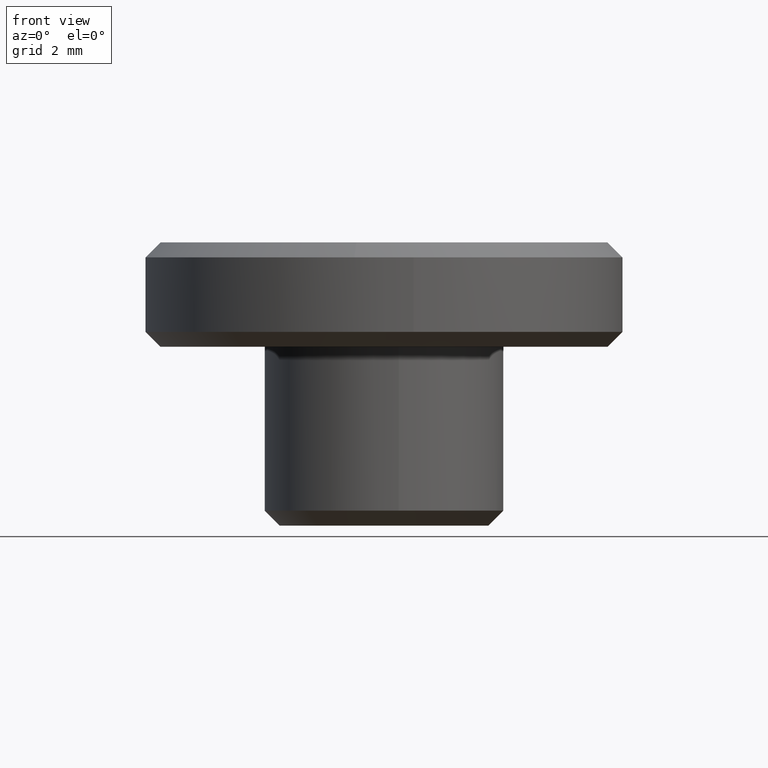
[diagram: clean part render]
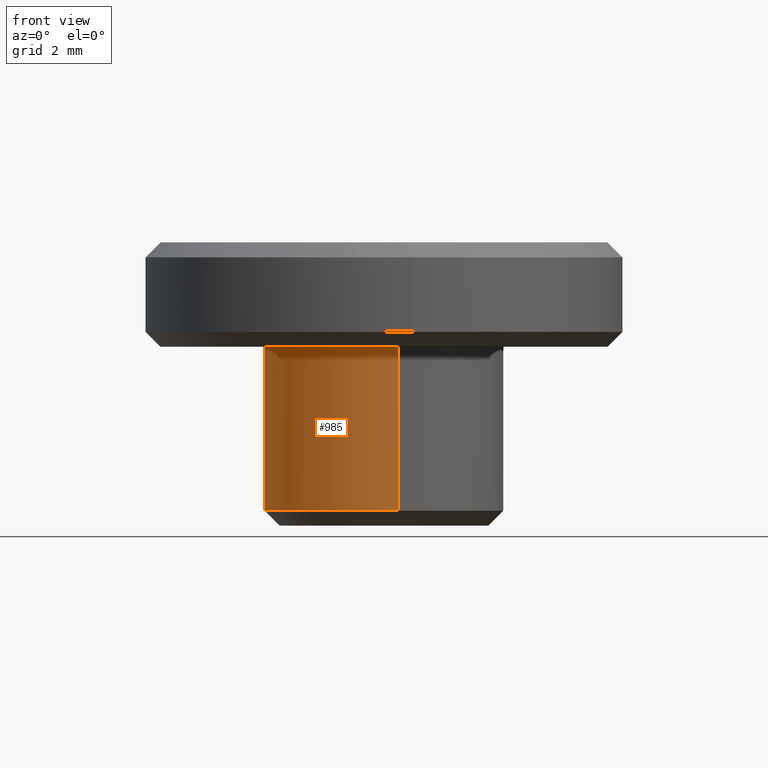
[diagram: same view with one face highlighted and labeled with its STEP entity id]
A machine part, front view. The second image highlights one B-rep face of the part: STEP entity #985.
In plain terms, the highlighted face is a freeform B-spline surface patch.
Its self-contained STEP definition (entity closure, byte-faithful):
#498=CARTESIAN_POINT('',(-1.616861727963373,-3.658655238288483,0.500000000000999));
#499=VERTEX_POINT('',#498);
#500=CARTESIAN_POINT('',(0.496510696364964,-3.969065019421251,0.499999999999956));
#501=VERTEX_POINT('',#500);
#502=CARTESIAN_POINT('',(-1.616861727963373,-3.658655238288482,0.500000000000999));
#503=CARTESIAN_POINT('',(-0.844462469020603,-4.000000000000001,0.499999999999945));
#504=CARTESIAN_POINT('',(-1.065814E-014,-4.0,0.499999999999945));
#505=CARTESIAN_POINT('',(0.249219046477814,-4.000000000000001,0.499999999999945));
#506=CARTESIAN_POINT('',(0.496510696364964,-3.969065019421251,0.499999999999956));
#514=(BOUNDED_CURVE()B_SPLINE_CURVE(2,(#502,#503,#504,#505,#506),.UNSPECIFIED.,.F.,.U.)B_SPLINE_CURVE_WITH_KNOTS((3,2,3),(0.181361578458957,0.250000000000000,0.271473873225641),.UNSPECIFIED.)CURVE()GEOMETRIC_REPRESENTATION_ITEM()RATIONAL_B_SPLINE_CURVE((0.883326595750854,0.919585087122277,1.0,0.974841792602200,0.954005538454358))REPRESENTATION_ITEM(''));
#515=EDGE_CURVE('',#499,#501,#514,.T.);
#558=CARTESIAN_POINT('',(-0.034904604637149,3.999847705671220,0.499999999999363));
#559=VERTEX_POINT('',#558);
#616=CARTESIAN_POINT('',(-4.000000000000011,0.0,0.499999999999945));
#617=VERTEX_POINT('',#616);
#618=CARTESIAN_POINT('',(-4.000000000000011,0.0,0.499999999999945));
#619=CARTESIAN_POINT('',(-4.000000000000012,-2.605480010348695,0.499999999999945));
#620=CARTESIAN_POINT('',(-1.616861727963373,-3.658655238288482,0.500000000000999));
#628=(BOUNDED_CURVE()B_SPLINE_CURVE(2,(#618,#619,#620),.UNSPECIFIED.,.F.,.U.)B_SPLINE_CURVE_WITH_KNOTS((3,3),(0.0,0.181361578458957),.UNSPECIFIED.)CURVE()GEOMETRIC_REPRESENTATION_ITEM()RATIONAL_B_SPLINE_CURVE((1.0,0.787521694064270,0.883326595750854))REPRESENTATION_ITEM(''));
#629=EDGE_CURVE('',#617,#499,#628,.T.);
#631=CARTESIAN_POINT('',(-0.034904604637149,3.999847705671220,0.499999999999363));
#632=CARTESIAN_POINT('',(-4.000000000000011,3.965246366494845,0.499999999999945));
#633=CARTESIAN_POINT('',(-4.000000000000011,0.0,0.499999999999945));
#641=(BOUNDED_CURVE()B_SPLINE_CURVE(2,(#631,#632,#633),.UNSPECIFIED.,.F.,.U.)B_SPLINE_CURVE_WITH_KNOTS((3,3),(0.751539826633849,1.0),.UNSPECIFIED.)CURVE()GEOMETRIC_REPRESENTATION_ITEM()RATIONAL_B_SPLINE_CURVE((0.996414184779850,0.708910800303359,1.0))REPRESENTATION_ITEM(''));
#642=EDGE_CURVE('',#559,#617,#641,.T.);
#879=CARTESIAN_POINT('',(-0.034902881422557,3.999847720708598,6.000000000000001));
#880=VERTEX_POINT('',#879);
#881=CARTESIAN_POINT('',(-0.034904604637149,3.999847705671220,0.499999999999363));
#882=CARTESIAN_POINT('',(-0.034902881422557,3.999847720708598,6.000000000000001));
#883=QUASI_UNIFORM_CURVE('',1,(#881,#882),.UNSPECIFIED.,.F.,.U.);
#884=EDGE_CURVE('',#559,#880,#883,.T.);
#903=CARTESIAN_POINT('',(0.496507199149395,-3.969065456901576,6.0));
#904=VERTEX_POINT('',#903);
#918=CARTESIAN_POINT('',(0.496510696364964,-3.969065019421251,0.499999999999956));
#919=CARTESIAN_POINT('',(0.496507199149395,-3.969065456901576,6.0));
#920=QUASI_UNIFORM_CURVE('',1,(#918,#919),.UNSPECIFIED.,.F.,.U.);
#921=EDGE_CURVE('',#501,#904,#920,.T.);
#926=CARTESIAN_POINT('',(-0.034906141993506,3.999847692256684,0.362499999999943));
#927=CARTESIAN_POINT('',(-4.034753834250190,3.964941550263188,0.362499999999943));
#928=CARTESIAN_POINT('',(-3.999847692256695,-0.034906141993496,0.362499999999943));
#929=CARTESIAN_POINT('',(-3.964941550263200,-4.034753834250179,0.362499999999943));
#930=CARTESIAN_POINT('',(0.034906141993485,-3.999847692256684,0.362499999999943));
#931=CARTESIAN_POINT('',(0.266600635832684,-3.997825725041103,0.362499999999943));
#932=CARTESIAN_POINT('',(0.496512008319306,-3.969064855302155,0.362499999999943));
#933=CARTESIAN_POINT('',(-0.034906141993506,3.999847692256684,6.140937500000002));
#934=CARTESIAN_POINT('',(-4.034753834250190,3.964941550263188,6.140937500000002));
#935=CARTESIAN_POINT('',(-3.999847692256695,-0.034906141993496,6.140937500000002));
#936=CARTESIAN_POINT('',(-3.964941550263200,-4.034753834250179,6.140937500000002));
#937=CARTESIAN_POINT('',(0.034906141993485,-3.999847692256684,6.140937500000002));
#938=CARTESIAN_POINT('',(0.266600635832684,-3.997825725041103,6.140937500000002));
#939=CARTESIAN_POINT('',(0.496512008319306,-3.969064855302155,6.140937500000002));
#947=(BOUNDED_SURFACE()B_SPLINE_SURFACE(2,1,((#926,#933),(#927,#934),(#928,#935),(#929,#936),(#930,#937),(#931,#938),(#932,#939)),.UNSPECIFIED.,.F.,.F.,.U.)B_SPLINE_SURFACE_WITH_KNOTS((3,2,2,3),(2,2),(0.0,6.627416997969519,13.254833995939039,13.785027355776601),(0.0,5.778437500000059),.UNSPECIFIED.)GEOMETRIC_REPRESENTATION_ITEM()RATIONAL_B_SPLINE_SURFACE(((1.0,1.0),(0.707106781186548,0.707106781186548),(1.0,1.0),(0.707106781186548,0.707106781186548),(1.0,1.0),(0.976568542494924,0.976568542494924),(0.956886118190660,0.956886118190660)))REPRESENTATION_ITEM('')SURFACE());
#948=ORIENTED_EDGE('',*,*,#629,.T.);
#949=ORIENTED_EDGE('',*,*,#515,.T.);
#950=ORIENTED_EDGE('',*,*,#921,.T.);
#951=CARTESIAN_POINT('',(-4.000000000000011,0.0,6.0));
#952=VERTEX_POINT('',#951);
#953=CARTESIAN_POINT('',(0.496507199149395,-3.969065456901576,6.0));
#954=CARTESIAN_POINT('',(0.249217277400862,-4.000000000000001,6.0));
#955=CARTESIAN_POINT('',(-1.065814E-014,-4.0,6.0));
#956=CARTESIAN_POINT('',(-4.000000000000011,-4.000000000000000,6.0));
#957=CARTESIAN_POINT('',(-4.000000000000011,0.0,6.0));
#965=(BOUNDED_CURVE()B_SPLINE_CURVE(2,(#953,#954,#955,#956,#957),.UNSPECIFIED.,.F.,.U.)B_SPLINE_CURVE_WITH_KNOTS((3,2,3),(0.728526275371378,0.750000000000000,1.0),.UNSPECIFIED.)CURVE()GEOMETRIC_REPRESENTATION_ITEM()RATIONAL_B_SPLINE_CURVE((0.954005826824084,0.974841966694437,1.0,0.707106781186548,1.0))REPRESENTATION_ITEM(''));
#966=EDGE_CURVE('',#904,#952,#965,.T.);
#967=ORIENTED_EDGE('',*,*,#966,.T.);
#968=CARTESIAN_POINT('',(-4.000000000000011,0.0,6.0));
#969=CARTESIAN_POINT('',(-4.000000000000011,3.965248074867892,6.000000000000001));
#970=CARTESIAN_POINT('',(-0.034902881422557,3.999847720708598,6.000000000000001));
#978=(BOUNDED_CURVE()B_SPLINE_CURVE(2,(#968,#969,#970),.UNSPECIFIED.,.F.,.U.)B_SPLINE_CURVE_WITH_KNOTS((3,3),(0.0,0.248460249252010),.UNSPECIFIED.)CURVE()GEOMETRIC_REPRESENTATION_ITEM()RATIONAL_B_SPLINE_CURVE((1.0,0.708910711397544,0.996414360401140))REPRESENTATION_ITEM(''));
#979=EDGE_CURVE('',#952,#880,#978,.T.);
#980=ORIENTED_EDGE('',*,*,#979,.T.);
#981=ORIENTED_EDGE('',*,*,#884,.F.);
#982=ORIENTED_EDGE('',*,*,#642,.T.);
#983=EDGE_LOOP('',(#948,#949,#950,#967,#980,#981,#982));
#984=FACE_OUTER_BOUND('',#983,.T.);
#985=ADVANCED_FACE('',(#984),#947,.T.);